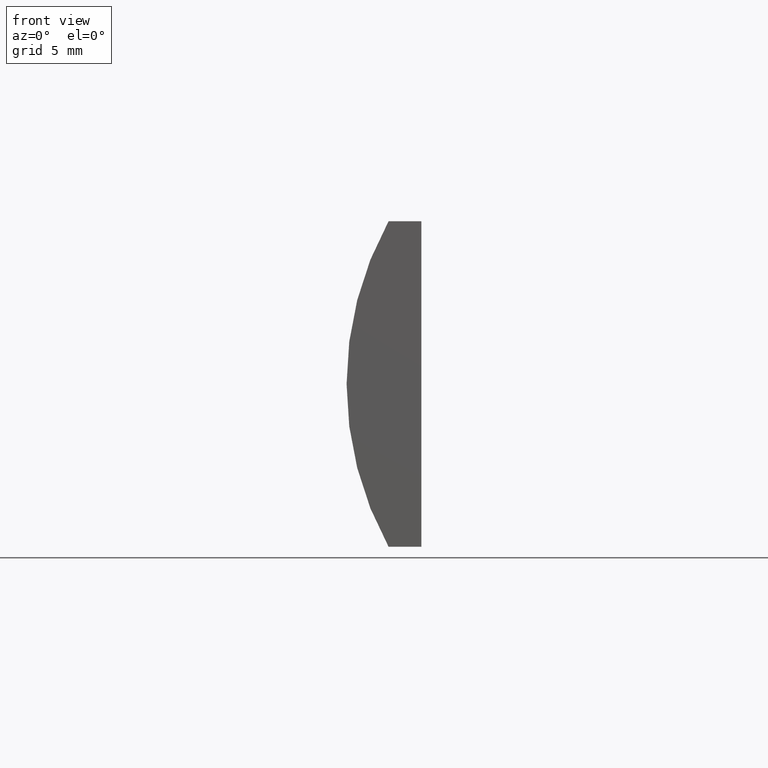
[diagram: clean part render]
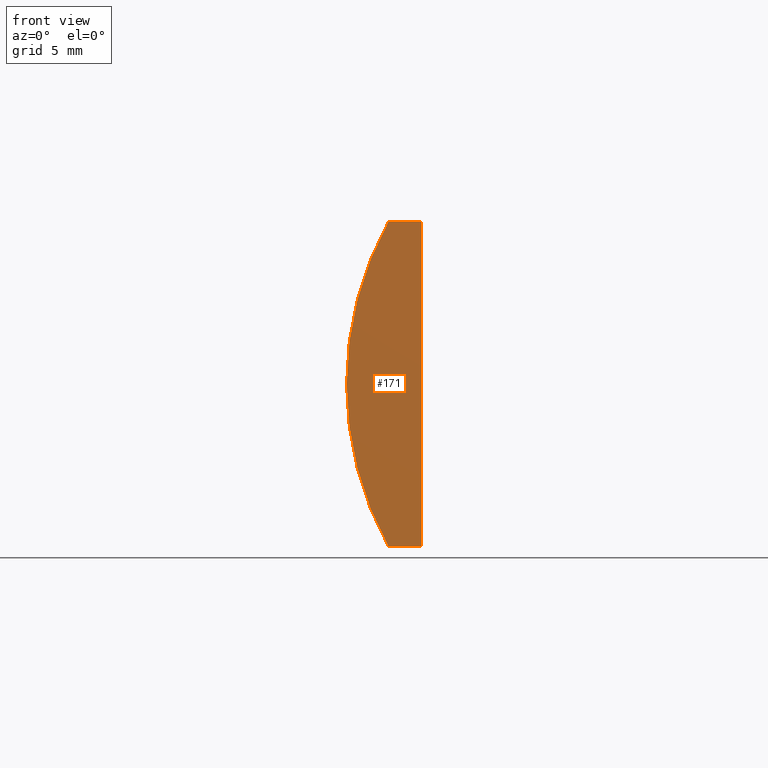
[diagram: same view with one face highlighted and labeled with its STEP entity id]
A machine part, front view. The second image highlights one B-rep face of the part: STEP entity #171.
In plain terms, the highlighted planar face has unit normal (0, 1, 0).
Its self-contained STEP definition (entity closure, byte-faithful):
#7 = EDGE_LOOP ( 'NONE', ( #130, #66, #49, #11 ) ) ;
#11 = ORIENTED_EDGE ( 'NONE', *, *, #20, .F. ) ;
#12 = AXIS2_PLACEMENT_3D ( 'NONE', #81, #200, #201 ) ;
#14 = CARTESIAN_POINT ( 'NONE',  ( -11.72479566514873800, 0.0000000000000000000, -9.999999999999996400 ) ) ;
#19 = EDGE_CURVE ( 'NONE', #135, #101, #193, .T. ) ;
#20 = EDGE_CURVE ( 'NONE', #101, #117, #181, .T. ) ;
#27 = DIRECTION ( 'NONE',  ( 0.0000000000000000000, -0.0000000000000000000, 1.000000000000000000 ) ) ;
#49 = ORIENTED_EDGE ( 'NONE', *, *, #85, .F. ) ;
#52 = VECTOR ( 'NONE', #92, 1000.000000000000000 ) ;
#66 = ORIENTED_EDGE ( 'NONE', *, *, #192, .F. ) ;
#71 = LINE ( 'NONE', #124, #52 ) ;
#72 = DIRECTION ( 'NONE',  ( -1.000000000000000000, -0.0000000000000000000, -1.716318147061464100E-015 ) ) ;
#73 = CARTESIAN_POINT ( 'NONE',  ( -13.74624312108440400, 0.0000000000000000000, -10.00000000000000000 ) ) ;
#74 = VECTOR ( 'NONE', #72, 1000.000000000000000 ) ;
#81 = CARTESIAN_POINT ( 'NONE',  ( 4.355204334851265500, 0.0000000000000000000, 4.286263797015675000E-017 ) ) ;
#83 = FACE_OUTER_BOUND ( 'NONE', #7, .T. ) ;
#84 = DIRECTION ( 'NONE',  ( 0.0000000000000000000, 1.000000000000000000, 0.0000000000000000000 ) ) ;
#85 = EDGE_CURVE ( 'NONE', #117, #105, #71, .T. ) ;
#89 = LINE ( 'NONE', #128, #74 ) ;
#92 = DIRECTION ( 'NONE',  ( -3.469446951953614700E-016, -0.0000000000000000000, -1.000000000000000000 ) ) ;
#99 = DIRECTION ( 'NONE',  ( 1.000000000000000000, 0.0000000000000000000, 0.0000000000000000000 ) ) ;
#101 = VERTEX_POINT ( 'NONE', #173 ) ;
#104 = PLANE ( 'NONE',  #196 ) ;
#105 = VERTEX_POINT ( 'NONE', #14 ) ;
#117 = VERTEX_POINT ( 'NONE', #134 ) ;
#124 = CARTESIAN_POINT ( 'NONE',  ( -11.72479566514873800, 0.0000000000000000000, -9.999999999999996400 ) ) ;
#128 = CARTESIAN_POINT ( 'NONE',  ( -13.74624312108440400, 0.0000000000000000000, -10.00000000000000000 ) ) ;
#130 = ORIENTED_EDGE ( 'NONE', *, *, #19, .F. ) ;
#134 = CARTESIAN_POINT ( 'NONE',  ( -11.72479566514873100, 0.0000000000000000000, 10.00000000000000000 ) ) ;
#135 = VERTEX_POINT ( 'NONE', #73 ) ;
#139 = CARTESIAN_POINT ( 'NONE',  ( 4.355204334851265500, 0.0000000000000000000, 4.286263797015675000E-017 ) ) ;
#161 = VECTOR ( 'NONE', #99, 1000.000000000000000 ) ;
#171 = ADVANCED_FACE ( 'NONE', ( #83 ), #104, .F. ) ;
#173 = CARTESIAN_POINT ( 'NONE',  ( -13.74624312108440400, 0.0000000000000000000, 10.00000000000000000 ) ) ;
#181 = LINE ( 'NONE', #194, #161 ) ;
#192 = EDGE_CURVE ( 'NONE', #105, #135, #89, .T. ) ;
#193 = CIRCLE ( 'NONE', #12, 20.68000000000000000 ) ;
#194 = CARTESIAN_POINT ( 'NONE',  ( -13.74624312108440400, 0.0000000000000000000, 10.00000000000000000 ) ) ;
#196 = AXIS2_PLACEMENT_3D ( 'NONE', #139, #84, #27 ) ;
#200 = DIRECTION ( 'NONE',  ( 0.0000000000000000000, 1.000000000000000000, 0.0000000000000000000 ) ) ;
#201 = DIRECTION ( 'NONE',  ( 0.0000000000000000000, 0.0000000000000000000, 1.000000000000000000 ) ) ;